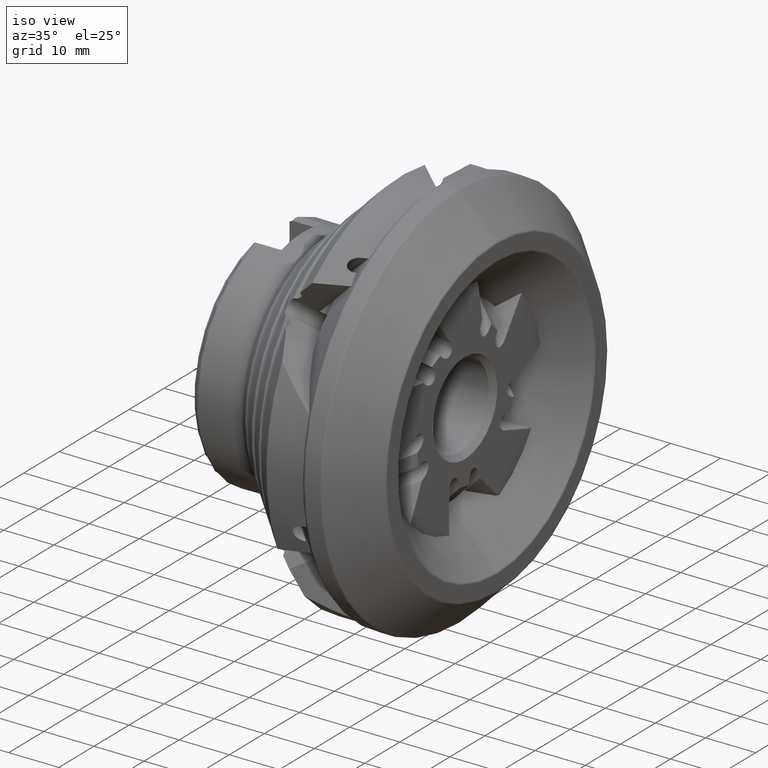
[diagram: clean part render]
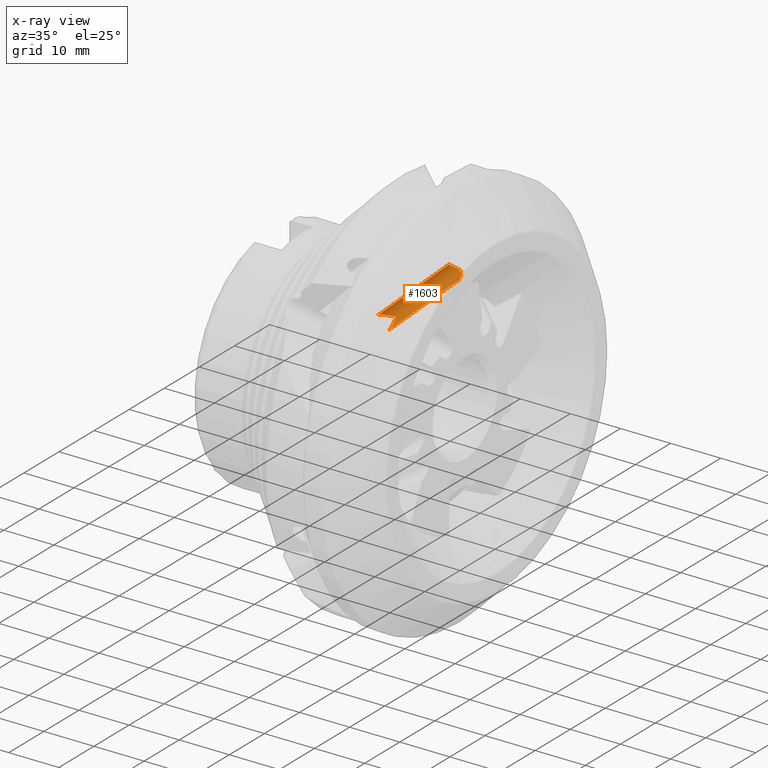
[diagram: x-ray — body ghosted, one internal face saturated and labeled with its STEP entity id]
A machine part, iso view, then the same camera in x-ray: the body is ghosted and one INTERNAL B-rep face — a face not visible from any outside direction — is saturated and labeled: STEP entity #1603.
In plain terms, the highlighted cylindrical surface (edge-blend (fillet) strip) has radius 1.5 mm, axis along (0.6428, 0.4503, 0.6197).
Its self-contained STEP definition (entity closure, byte-faithful):
#310 = VERTEX_POINT ( 'NONE', #2490 ) ;
#621 = VERTEX_POINT ( 'NONE', #10101 ) ;
#659 = VERTEX_POINT ( 'NONE', #5663 ) ;
#683 = VERTEX_POINT ( 'NONE', #5571 ) ;
#986 = B_SPLINE_CURVE_WITH_KNOTS ( 'NONE', 3,
 ( #7772, #7773, #7780, #7781, #7782, #7783 ),
 .UNSPECIFIED., .F., .F.,
 ( 4, 2, 4 ),
 ( 0.01808845958570509300, 0.01876552885364165000, 0.01944259812157820800 ),
 .UNSPECIFIED. ) ;
#1252 = EDGE_LOOP ( 'NONE', ( #9900, #9898, #9978, #9899, #9903, #9901, #9977 ) ) ;
#1445 = FACE_OUTER_BOUND ( 'NONE', #1252, .T. ) ;
#1446 = CYLINDRICAL_SURFACE ( 'NONE', #2518, 1.499999999999997600 ) ;
#1603 = ADVANCED_FACE ( 'NONE', ( #1445 ), #1446, .F. ) ;
#2490 = CARTESIAN_POINT ( 'NONE',  ( -21.65000000000000200, 4.049922358710174000, 10.38848539915321600 ) ) ;
#2518 = AXIS2_PLACEMENT_3D ( 'NONE', #5447, #5454, #5444 ) ;
#2753 = EDGE_CURVE ( 'NONE', #621, #310, #5701, .T. ) ;
#3399 = VERTEX_POINT ( 'NONE', #8091 ) ;
#3647 = VERTEX_POINT ( 'NONE', #8181 ) ;
#3673 = VERTEX_POINT ( 'NONE', #8194 ) ;
#4453 = CARTESIAN_POINT ( 'NONE',  ( -32.79982629240704700, -5.966923008517137600, -1.984619302019555100 ) ) ;
#4454 = DIRECTION ( 'NONE',  ( 0.6427876096865384700, 0.4502696262659414700, 0.6197429729297425600 ) ) ;
#4929 = DIRECTION ( 'NONE',  ( 0.6427876096865384700, 0.4502696262659414700, 0.6197429729297425600 ) ) ;
#4931 = CARTESIAN_POINT ( 'NONE',  ( -34.88207990150292700, -5.966923008517137600, 0.1750612084743391500 ) ) ;
#4985 = EDGE_CURVE ( 'NONE', #3399, #659, #5781, .T. ) ;
#5166 = EDGE_CURVE ( 'NONE', #310, #3647, #5752, .T. ) ;
#5444 = DIRECTION ( 'NONE',  ( 0.6940845363652934400, 0.0000000000000000000, -0.7198935034979658800 ) ) ;
#5447 = CARTESIAN_POINT ( 'NONE',  ( -33.84095309695498300, -5.966923008517137600, -0.9047790467726080100 ) ) ;
#5454 = DIRECTION ( 'NONE',  ( 0.6427876096865385900, 0.4502696262659414700, 0.6197429729297426700 ) ) ;
#5571 = CARTESIAN_POINT ( 'NONE',  ( -14.15613750059413800, 8.551499870569772500, 20.15795597300427700 ) ) ;
#5663 = CARTESIAN_POINT ( 'NONE',  ( -12.31815474334326600, 8.380389314749400900, 17.76276198707741100 ) ) ;
#5701 =( BOUNDED_CURVE ( )  B_SPLINE_CURVE ( 3, ( #7950, #7951, #7969, #7970 ),
 .UNSPECIFIED., .F., .F. ) 
 B_SPLINE_CURVE_WITH_KNOTS ( ( 4, 4 ),
 ( 3.578503791652055500, 4.926389103152930100 ),
 .UNSPECIFIED. ) 
 CURVE ( )  GEOMETRIC_REPRESENTATION_ITEM ( )  RATIONAL_B_SPLINE_CURVE ( ( 1.000000000000000000, 0.8542448307917528400, 0.8542448307917528400, 1.000000000000000000 ) ) 
 REPRESENTATION_ITEM ( '' )  );
#5752 = B_SPLINE_CURVE_WITH_KNOTS ( 'NONE', 3,
 ( #9622, #9621, #9627, #9628, #9629, #9630, #9631, #9632, #9633, #9634, #9635, #9636, #9637, #9638 ),
 .UNSPECIFIED., .F., .F.,
 ( 4, 2, 2, 2, 2, 2, 4 ),
 ( 0.002339688951023316900, 0.003168999335836257300, 0.003583654528242722900, 0.003998309720649188100, 0.004827620105462121200, 0.005242275297868588500, 0.005656930490275056800 ),
 .UNSPECIFIED. ) ;
#5781 = B_SPLINE_CURVE_WITH_KNOTS ( 'NONE', 3,
 ( #8237, #8250, #8256, #8257, #8258, #8259 ),
 .UNSPECIFIED., .F., .F.,
 ( 4, 2, 4 ),
 ( 0.003238553018692166700, 0.003465236665366132900, 0.003691920312040099100 ),
 .UNSPECIFIED. ) ;
#7216 = B_SPLINE_CURVE_WITH_KNOTS ( 'NONE', 3,
 ( #7863, #7862, #7870, #7871, #7872, #7873, #7874, #7875, #7876, #7877, #7878, #7879, #7880, #7881, #7882, #7883, #7884, #7885, #7886, #7887 ),
 .UNSPECIFIED., .F., .F.,
 ( 4, 2, 2, 2, 2, 2, 2, 2, 2, 4 ),
 ( 0.0000000000000000000, 0.0004048191273365211000, 0.0008096382546730422100, 0.001214457382009563300, 0.001619276509346084400, 0.001821686073014349200, 0.002024095636682614200, 0.002428914764019131700, 0.002833733891355649200, 0.003238553018692166700 ),
 .UNSPECIFIED. ) ;
#7772 = CARTESIAN_POINT ( 'NONE',  ( -14.15613750059413800, 8.551499870569772500, 20.15795597300427700 ) ) ;
#7773 = CARTESIAN_POINT ( 'NONE',  ( -14.27940136850275400, 8.702583390245665700, 20.03911124917741700 ) ) ;
#7780 = CARTESIAN_POINT ( 'NONE',  ( -14.34841043466617800, 8.884916579907765000, 19.90649562538776300 ) ) ;
#7781 = CARTESIAN_POINT ( 'NONE',  ( -14.34086497418202700, 9.255953825509431400, 19.64177388717527300 ) ) ;
#7782 = CARTESIAN_POINT ( 'NONE',  ( -14.26530531631311200, 9.439839469090333800, 19.51301173812347400 ) ) ;
#7783 = CARTESIAN_POINT ( 'NONE',  ( -14.14282851326489500, 9.596142716133933000, 19.39807791422390800 ) ) ;
#7862 = CARTESIAN_POINT ( 'NONE',  ( -14.06959973908046800, 9.689596291808536300, 19.32935908072216700 ) ) ;
#7863 = CARTESIAN_POINT ( 'NONE',  ( -14.14282851326489500, 9.596142716133933000, 19.39807791422390800 ) ) ;
#7870 = CARTESIAN_POINT ( 'NONE',  ( -13.98241274409663300, 9.771641421121604100, 19.26683067429247100 ) ) ;
#7871 = CARTESIAN_POINT ( 'NONE',  ( -13.78670583737945200, 9.915188415302271400, 19.14734923400350300 ) ) ;
#7872 = CARTESIAN_POINT ( 'NONE',  ( -13.67713387952033500, 9.976841413759590400, 19.09033998620245900 ) ) ;
#7873 = CARTESIAN_POINT ( 'NONE',  ( -13.45002873814869600, 10.07057083076539400, 18.97764331855610100 ) ) ;
#7874 = CARTESIAN_POINT ( 'NONE',  ( -13.32982571771857200, 10.10442941055799300, 18.92124981802414400 ) ) ;
#7875 = CARTESIAN_POINT ( 'NONE',  ( -13.09179800851376500, 10.12582796688233900, 18.78814453133409800 ) ) ;
#7876 = CARTESIAN_POINT ( 'NONE',  ( -12.97630448758299700, 10.10971048727965300, 18.70873728251282800 ) ) ;
#7877 = CARTESIAN_POINT ( 'NONE',  ( -12.84313952035699400, 10.03690909205454700, 18.57270619335718500 ) ) ;
#7878 = CARTESIAN_POINT ( 'NONE',  ( -12.80445560201773800, 10.00479621165793300, 18.52448754300121400 ) ) ;
#7879 = CARTESIAN_POINT ( 'NONE',  ( -12.73913525562263700, 9.932028609374565800, 18.43008209645158100 ) ) ;
#7880 = CARTESIAN_POINT ( 'NONE',  ( -12.71163400144668300, 9.891040072803942700, 18.38316666418065300 ) ) ;
#7881 = CARTESIAN_POINT ( 'NONE',  ( -12.63807143073365000, 9.757398906226727700, 18.24509330068619300 ) ) ;
#7882 = CARTESIAN_POINT ( 'NONE',  ( -12.60215365899948900, 9.658076235432304200, 18.16030017873267600 ) ) ;
#7883 = CARTESIAN_POINT ( 'NONE',  ( -12.53725075369701100, 9.443616301884427200, 18.00798719616045700 ) ) ;
#7884 = CARTESIAN_POINT ( 'NONE',  ( -12.50864947166217100, 9.327075475599585300, 17.94004900362883600 ) ) ;
#7885 = CARTESIAN_POINT ( 'NONE',  ( -12.45480976138058100, 9.085546136264753200, 17.83160947786943500 ) ) ;
#7886 = CARTESIAN_POINT ( 'NONE',  ( -12.42948390053629400, 8.959938652019470600, 17.79025306006678900 ) ) ;
#7887 = CARTESIAN_POINT ( 'NONE',  ( -12.40385693171654900, 8.828335156995301200, 17.76620437943403600 ) ) ;
#7950 = CARTESIAN_POINT ( 'NONE',  ( -21.65000000000000200, 1.843476635092276700, 8.765473559098742500 ) ) ;
#7951 = CARTESIAN_POINT ( 'NONE',  ( -21.65000000000000200, 2.661663950159490100, 8.765473559098737200 ) ) ;
#7969 = CARTESIAN_POINT ( 'NONE',  ( -21.65000000000000200, 3.522637152878173700, 9.398786079331834700 ) ) ;
#7970 = CARTESIAN_POINT ( 'NONE',  ( -21.65000000000000200, 4.049922358710174000, 10.38848539915321600 ) ) ;
#8091 = CARTESIAN_POINT ( 'NONE',  ( -12.40385693171654900, 8.828335156995301200, 17.76620437943403600 ) ) ;
#8181 = CARTESIAN_POINT ( 'NONE',  ( -23.66633586620800500, 1.889651696663381200, 10.98870858951574500 ) ) ;
#8194 = CARTESIAN_POINT ( 'NONE',  ( -14.14282851326489500, 9.596142716133933000, 19.39807791422390800 ) ) ;
#8237 = CARTESIAN_POINT ( 'NONE',  ( -12.40385693171654900, 8.828335156995301200, 17.76620437943403600 ) ) ;
#8250 = CARTESIAN_POINT ( 'NONE',  ( -12.38950678284020900, 8.754642097175159100, 17.75273801320943400 ) ) ;
#8256 = CARTESIAN_POINT ( 'NONE',  ( -12.37507156706741200, 8.678991893952540300, 17.74493543592930000 ) ) ;
#8257 = CARTESIAN_POINT ( 'NONE',  ( -12.34661539701341400, 8.529407541123806200, 17.74314260864952100 ) ) ;
#8258 = CARTESIAN_POINT ( 'NONE',  ( -12.33246283835695500, 8.454778364970032100, 17.74896685287271200 ) ) ;
#8259 = CARTESIAN_POINT ( 'NONE',  ( -12.31815474334326600, 8.380389314749400900, 17.76276198707741100 ) ) ;
#8528 = EDGE_CURVE ( 'NONE', #621, #659, #9000, .T. ) ;
#8734 = EDGE_CURVE ( 'NONE', #3647, #683, #9090, .T. ) ;
#8836 = EDGE_CURVE ( 'NONE', #683, #3673, #986, .T. ) ;
#8861 = EDGE_CURVE ( 'NONE', #3673, #3399, #7216, .T. ) ;
#9000 = LINE ( 'NONE', #4453, #9001 ) ;
#9001 = VECTOR ( 'NONE', #4454, 1000.000000000000100 ) ;
#9090 = LINE ( 'NONE', #4931, #9096 ) ;
#9096 = VECTOR ( 'NONE', #4929, 1000.000000000000100 ) ;
#9621 = CARTESIAN_POINT ( 'NONE',  ( -21.92260848460057300, 4.007751780579631000, 10.40492548263876700 ) ) ;
#9622 = CARTESIAN_POINT ( 'NONE',  ( -21.65000000000000200, 4.049922358710174000, 10.38848539915321600 ) ) ;
#9627 = CARTESIAN_POINT ( 'NONE',  ( -22.19057600352981700, 3.925458785736821700, 10.43689378008752800 ) ) ;
#9628 = CARTESIAN_POINT ( 'NONE',  ( -22.55882193136358200, 3.750064198068995000, 10.50063751037040800 ) ) ;
#9629 = CARTESIAN_POINT ( 'NONE',  ( -22.67655617383949000, 3.682863174821656500, 10.52452331947909200 ) ) ;
#9630 = CARTESIAN_POINT ( 'NONE',  ( -22.90130442496668600, 3.529438306019133400, 10.57696258434913400 ) ) ;
#9631 = CARTESIAN_POINT ( 'NONE',  ( -23.00802219537024800, 3.443107715489664300, 10.60552459910688900 ) ) ;
#9632 = CARTESIAN_POINT ( 'NONE',  ( -23.29863156895168800, 3.162121146135360200, 10.69401986663888100 ) ) ;
#9633 = CARTESIAN_POINT ( 'NONE',  ( -23.46073415781315700, 2.938104323024243000, 10.75898238102565900 ) ) ;
#9634 = CARTESIAN_POINT ( 'NONE',  ( -23.61628840483694000, 2.565092956186854100, 10.85169170443802700 ) ) ;
#9635 = CARTESIAN_POINT ( 'NONE',  ( -23.65418085802779300, 2.432261056726845900, 10.88234631278587400 ) ) ;
#9636 = CARTESIAN_POINT ( 'NONE',  ( -23.69103893271123300, 2.163528547444938200, 10.93894416037787000 ) ) ;
#9637 = CARTESIAN_POINT ( 'NONE',  ( -23.69037834302522000, 2.024451176088241800, 10.96552806171036200 ) ) ;
#9638 = CARTESIAN_POINT ( 'NONE',  ( -23.66633586620800500, 1.889651696663381200, 10.98870858951574500 ) ) ;
#9898 = ORIENTED_EDGE ( 'NONE', *, *, #5166, .F. ) ;
#9899 = ORIENTED_EDGE ( 'NONE', *, *, #8528, .T. ) ;
#9900 = ORIENTED_EDGE ( 'NONE', *, *, #8734, .F. ) ;
#9901 = ORIENTED_EDGE ( 'NONE', *, *, #8861, .F. ) ;
#9903 = ORIENTED_EDGE ( 'NONE', *, *, #4985, .F. ) ;
#9977 = ORIENTED_EDGE ( 'NONE', *, *, #8836, .F. ) ;
#9978 = ORIENTED_EDGE ( 'NONE', *, *, #2753, .F. ) ;
#10101 = CARTESIAN_POINT ( 'NONE',  ( -21.65000000000000200, 1.843476635092276700, 8.765473559098742500 ) ) ;